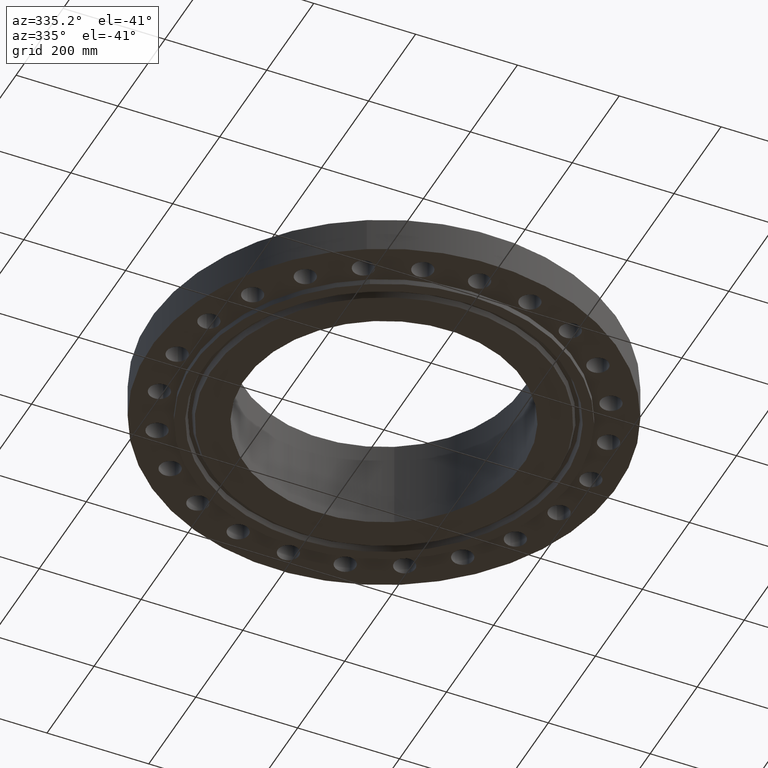
[diagram: clean part render]
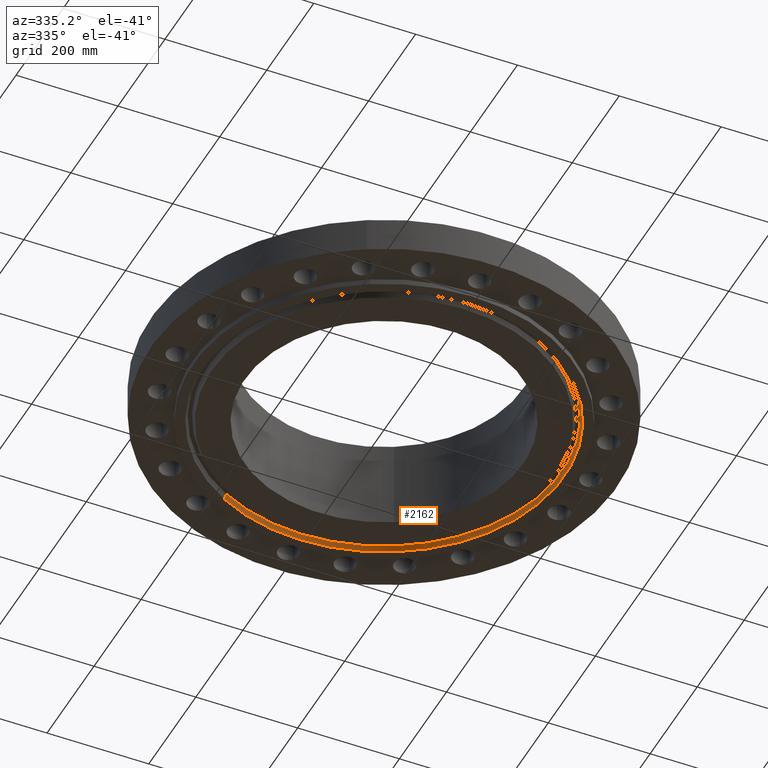
[diagram: same view with one face highlighted and labeled with its STEP entity id]
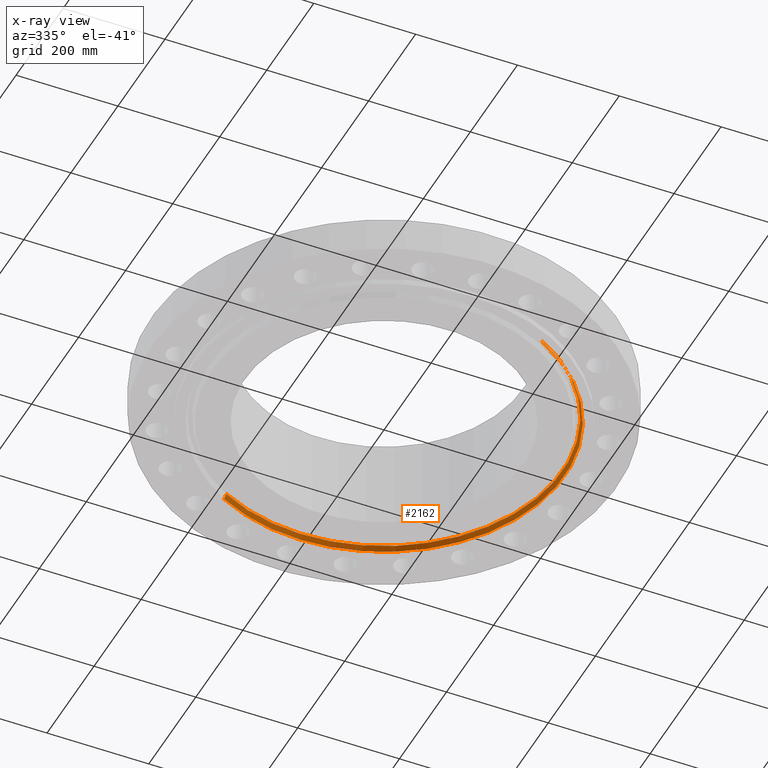
[diagram: x-ray of the same camera — body ghosted, the highlighted face saturated]
A machine part, auxiliary view. The second image highlights one B-rep face of the part: STEP entity #2162.
The next image is the same camera in x-ray: the body ghosted, the highlighted face saturated — about 0% of this face is hidden behind the body in this view.
In plain terms, the highlighted conical surface has half-angle 23 deg.
Its self-contained STEP definition (entity closure, byte-faithful):
#2023=AXIS2_PLACEMENT_3D('Circle Axis2P3D',#2021,#2022,$) ;
#2097=AXIS2_PLACEMENT_3D('Cone Axis2P3D',#2094,#2095,#2096) ;
#2118=AXIS2_PLACEMENT_3D('Circle Axis2P3D',#2116,#2117,$) ;
#2016=CARTESIAN_POINT('Vertex',(6.68942454017,-12.2449094861,-0.438000000002)) ;
#2018=CARTESIAN_POINT('Vertex',(-6.68942454017,12.2449094861,-0.438000000002)) ;
#2021=CARTESIAN_POINT('Axis2P3D Location',(1.1189649382E-015,2.23792987641E-015,-0.438000000002)) ;
#2063=CARTESIAN_POINT('Vertex',(-6.60810104635,12.0960478292,-0.0383839389053)) ;
#2065=CARTESIAN_POINT('Vertex',(6.60810104635,-12.0960478292,-0.0383839389053)) ;
#2094=CARTESIAN_POINT('Axis2P3D Location',(0.,0.,-0.0383839389053)) ;
#2099=CARTESIAN_POINT('Line Origine',(-6.64876279326,12.1704786576,-0.238191969454)) ;
#2104=CARTESIAN_POINT('Line Origine',(6.64876279326,-12.1704786576,-0.238191969454)) ;
#2116=CARTESIAN_POINT('Axis2P3D Location',(0.,0.,-0.0383839389053)) ;
#2022=DIRECTION('Axis2P3D Direction',(0.,0.,-0.0393700787402)) ;
#2095=DIRECTION('Axis2P3D Direction',(-0.,-0.,-0.0393700787402)) ;
#2096=DIRECTION('Axis2P3D XDirection',(-0.0188750212049,0.0345504945626,0.)) ;
#2100=DIRECTION('Vector Direction',(-0.00737505833565,0.0134999537303,-0.0362403485611)) ;
#2105=DIRECTION('Vector Direction',(0.00737505833565,-0.0134999537303,-0.0362403485611)) ;
#2117=DIRECTION('Axis2P3D Direction',(0.,0.,0.0393700787402)) ;
#2101=VECTOR('Line Direction',#2100,0.0393700787402) ;
#2106=VECTOR('Line Direction',#2105,0.0393700787402) ;
#2157=ORIENTED_EDGE('',*,*,#2025,.T.) ;
#2158=ORIENTED_EDGE('',*,*,#2108,.T.) ;
#2159=ORIENTED_EDGE('',*,*,#2120,.T.) ;
#2160=ORIENTED_EDGE('',*,*,#2103,.F.) ;
#2162=ADVANCED_FACE('PartBody',(#2161),#2098,.F.) ;
#2024=CIRCLE('generated circle',#2023,13.9530000001) ;
#2119=CIRCLE('generated circle',#2118,13.783373046) ;
#2098=CONICAL_SURFACE('Cone',#2097,13.783373046,0.401425727959) ;
#2025=EDGE_CURVE('',#2019,#2017,#2024,.T.) ;
#2103=EDGE_CURVE('',#2019,#2064,#2102,.F.) ;
#2108=EDGE_CURVE('',#2017,#2066,#2107,.F.) ;
#2120=EDGE_CURVE('',#2066,#2064,#2119,.T.) ;
#2156=EDGE_LOOP('',(#2157,#2158,#2159,#2160)) ;
#2161=FACE_OUTER_BOUND('',#2156,.T.) ;
#2102=LINE('Line',#2099,#2101) ;
#2107=LINE('Line',#2104,#2106) ;
#2017=VERTEX_POINT('',#2016) ;
#2019=VERTEX_POINT('',#2018) ;
#2064=VERTEX_POINT('',#2063) ;
#2066=VERTEX_POINT('',#2065) ;